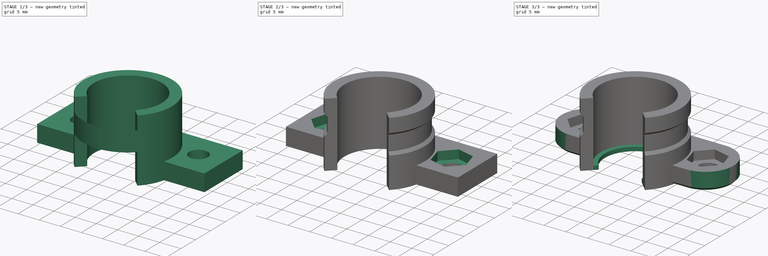
[diagram: build sequence overview — one tinted view per stage of 3, left to right]
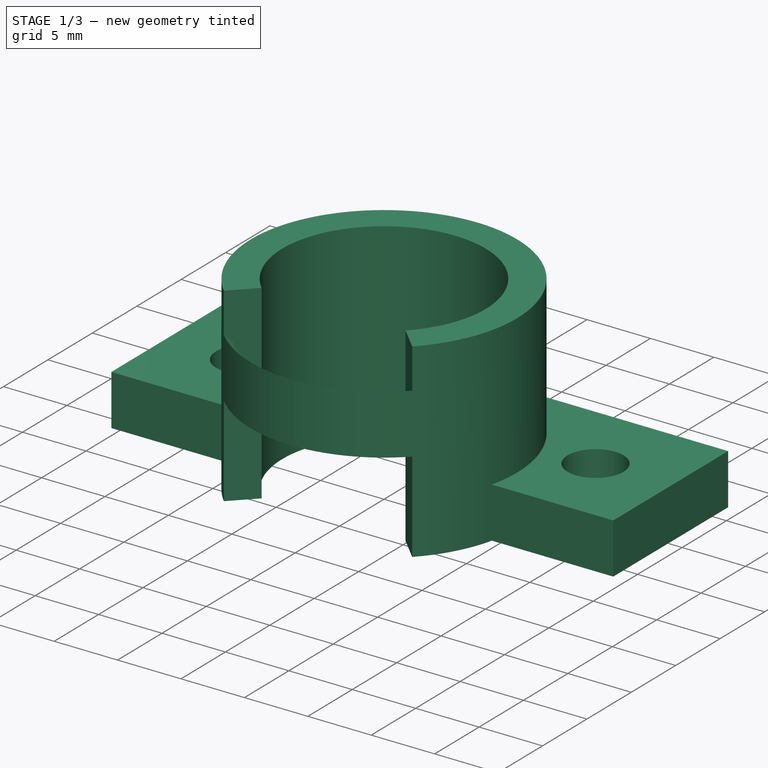
[diagram: stage 1 of 3 — iso view after this stage's code; geometry added in this stage tinted green]
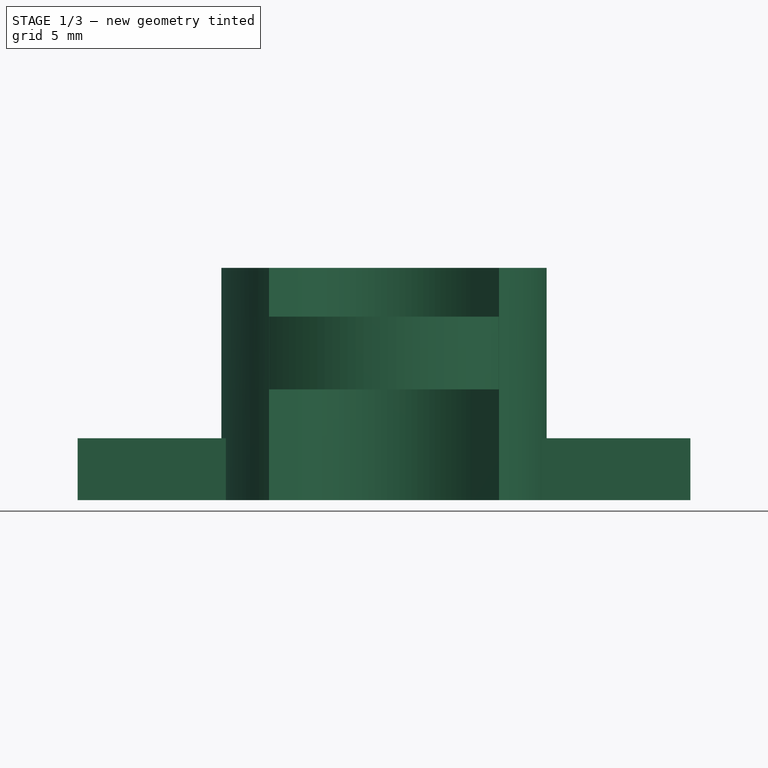
[diagram: stage 1 of 3 — front view after this stage's code; geometry added in this stage tinted green]
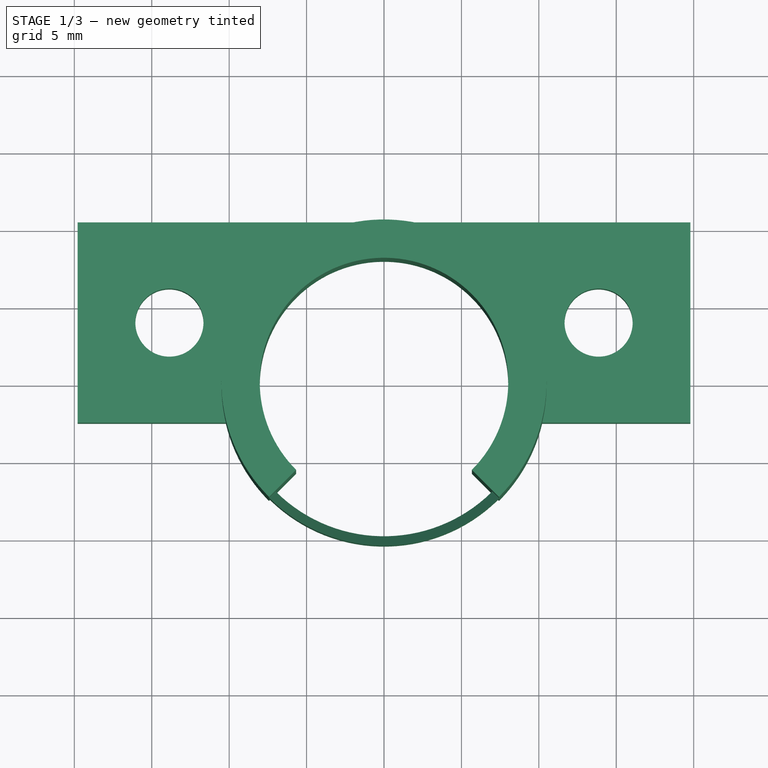
[diagram: stage 1 of 3 — top view after this stage's code; geometry added in this stage tinted green]
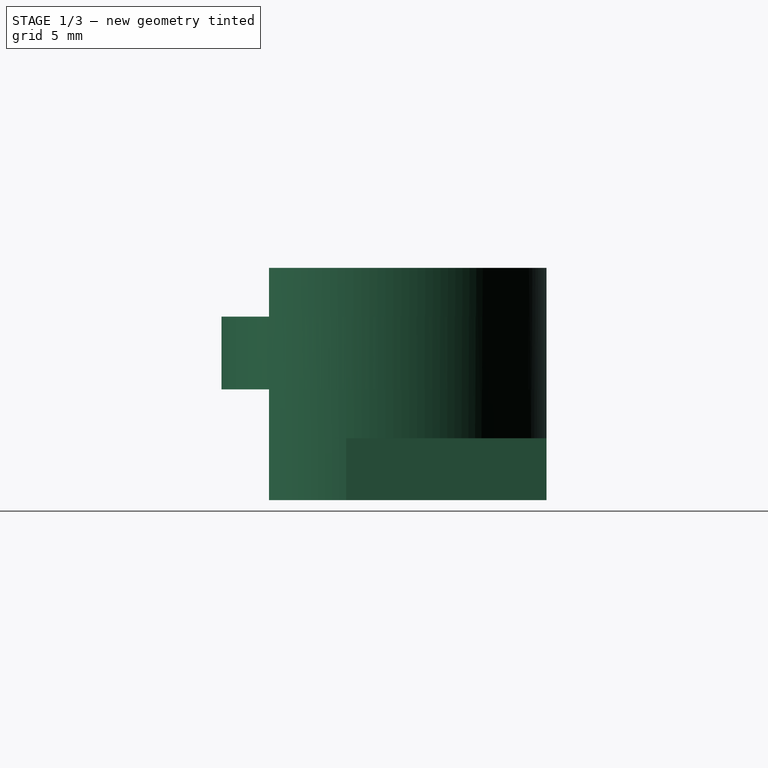
[diagram: stage 1 of 3 — right view after this stage's code; geometry added in this stage tinted green]
FCSTD DOCUMENT  (FreeCAD 0.15R4671 (Git))
Label: Halter Gleitlager X  v2
License: All rights reserved
LicenseURL: http://de.wikipedia.org/wiki/Alle_Rechte_vorbehalten
objects: Sketcher::SketchObject×5, PartDesign::Pad×3, PartDesign::Revolution×1, Part::Cut×1, PartDesign::Pocket×1, PartDesign::Fillet×1, PartDesign::Chamfer×1
note: 18 computed .brp shape members not serialized (recipe doc carries the construction recipe); baked Part::Feature solids carry a one-line shape summary decoded from their .brp

FEATURE [Sketcher::SketchObject] Sketch
  sketch-geometry (22):
    g0: Circle [constr] CenterX=0 CenterY=0 CenterZ=0 NormalX=0 NormalY=0 NormalZ=1 Radius=8.025
    g1: LineSegment StartX=-10.2124 StartY=-2.44064 StartZ=0 EndX=-19.7843 EndY=-2.44064 EndZ=0
    g2: LineSegment StartX=-19.7843 StartY=-2.44064 StartZ=0 EndX=-19.7843 EndY=10.5 EndZ=0
    g3: LineSegment StartX=19.7843 StartY=10.5 StartZ=0 EndX=-19.7843 EndY=10.5 EndZ=0
    g4: LineSegment StartX=10.2124 StartY=-2.44064 StartZ=0 EndX=19.7843 EndY=-2.44064 EndZ=0
    g5: LineSegment StartX=19.7843 StartY=-2.44064 StartZ=0 EndX=19.7843 EndY=10.5 EndZ=0
    g6: LineSegment [constr] StartX=17.3843 StartY=6.06484 StartZ=0 EndX=13.8593 EndY=8.1 EndZ=0
    g7: LineSegment [constr] StartX=13.8593 StartY=8.1 StartZ=0 EndX=10.3343 EndY=6.06484 EndZ=0
    g8: LineSegment [constr] StartX=10.3343 StartY=6.06484 StartZ=0 EndX=10.3343 EndY=1.99452 EndZ=0
    g9: LineSegment [constr] StartX=10.3343 StartY=1.99452 StartZ=0 EndX=13.8593 EndY=-0.0406388 EndZ=0
    g10: LineSegment [constr] StartX=13.8593 StartY=-0.0406388 StartZ=0 EndX=17.3843 EndY=1.99452 EndZ=0
    g11: LineSegment [constr] StartX=17.3843 StartY=1.99452 StartZ=0 EndX=17.3843 EndY=6.06484 EndZ=0
    g12: Circle [constr] CenterX=13.8593 CenterY=4.02968 CenterZ=0 NormalX=0 NormalY=0 NormalZ=1 Radius=4.07032
    g13: Circle CenterX=13.8593 CenterY=4.02968 CenterZ=0 NormalX=0 NormalY=0 NormalZ=1 Radius=2.2
    g14: Circle CenterX=-13.8593 CenterY=4.02968 CenterZ=0 NormalX=0 NormalY=0 NormalZ=1 Radius=2.2
    g15: LineSegment [constr] StartX=0 StartY=8.025 StartZ=0 EndX=0 EndY=10.5 EndZ=0
    g16: ArcOfCircle CenterX=0 CenterY=0 CenterZ=0 NormalX=0 NormalY=0 NormalZ=1 Radius=8.025 StartAngle=5.49779 EndAngle=10.2102
    g17: ArcOfCircle CenterX=0 CenterY=0 CenterZ=0 NormalX=0 NormalY=0 NormalZ=1 Radius=10.5 StartAngle=3.37618 EndAngle=3.92699
    g18: ArcOfCircle CenterX=0 CenterY=0 CenterZ=0 NormalX=0 NormalY=0 NormalZ=1 Radius=10.5 StartAngle=5.49779 EndAngle=6.0486
    g19: LineSegment StartX=-5.67453 StartY=-5.67453 StartZ=0 EndX=-7.42462 EndY=-7.42462 EndZ=0
    g20: LineSegment StartX=5.67453 StartY=-5.67453 StartZ=0 EndX=7.42462 EndY=-7.42462 EndZ=0
    g21: LineSegment [constr] StartX=10.3343 StartY=1.99452 StartZ=0 EndX=7.87959 EndY=1.52076 EndZ=0
  constraints (60):
    c: Coincident(g0,g-1)
    c: Radius(g0) = 8.025
    c: Coincident(g1,g2)
    c: Horizontal(g1)
    c: Vertical(g2)
    c: Coincident(g4,g5)
    c: Coincident(g5,g3)
    c: Horizontal(g3)
    c: Horizontal(g4)
    c: Vertical(g5)
    c: Equal(g2,g5)
    c: Coincident(g6,g7)
    c: Coincident(g7,g8)
    c: Coincident(g8,g9)
    c: Coincident(g9,g10)
    c: Coincident(g10,g11)
    c: Coincident(g11,g6)
    c: Equal(g6, g7-g11) x5
    c: PointOnObject(g6,g12)
    c: PointOnObject(g7,g12)
    c: PointOnObject(g8,g12)
    c: PointOnObject(g9,g12)
    c: PointOnObject(g10,g12)
    c: PointOnObject(g11,g12)
    c: Distance(g10,g6) = 7.05
    c: DistanceX(g6,g3) = 2.4
    c: DistanceY(g3,g6) = -2.4
    c: Coincident(g13,g12)
    c: Equal(g14,g13)
    c: Radius(g14) = 2.2
    c: Vertical(g11)
    c: DistanceY(g9,g4) = -2.4
    c: Coincident(g2,g3)
    c: Symmetric(g12,g14,g-2)
    c: Symmetric(g2,g3,g-2)
    c: PointOnObject(g15,g0)
    c: PointOnObject(g15,g3)
    c: Vertical(g15)
    c: DistanceY(g15) = 2.475
    c: PointOnObject(g15,g-2)
    c: Coincident(g16,g-1)
    c: PointOnObject(g16,g0)
    c: Coincident(g17,g-1)
    c: Coincident(g17,g1)
    c: Coincident(g18,g4)
    c: Coincident(g19,g16)
    c: Coincident(g19,g17)
    c: Coincident(g20,g16)
    c: Coincident(g20,g18)
    c: Perpendicular(g0,g20)
    c: Perpendicular(g0,g19)
    c: Equal(g17,g18)
    c: Radius(g18) = 10.5
    c: Coincident(g18,g-1)
    c: Coincident(g21,g8)
    c: PointOnObject(g21,g0)
    c: Perpendicular(g0,g21)
    c: Distance(g21) = 2.5
    c: Angle(g20,g-2) = 2.35619
    c: Angle(g-2,g19) = 2.35619
FEATURE [PartDesign::Pad] Pad
  Length = 4
  Length2 = 100
  Sketch = -> Sketch
  Type = 0
FEATURE [Sketcher::SketchObject] Sketch001
  ExternalGeometry = -> [Pad]
  Placement = pos=(0,0,4) rot=(0,0,1;0rad)
  Support = -> Pad [Face14]
  sketch-geometry (4):
    g0: ArcOfCircle CenterX=0 CenterY=0 CenterZ=0 NormalX=0 NormalY=0 NormalZ=1 Radius=8.025 StartAngle=5.49779 EndAngle=10.2102
    g1: ArcOfCircle CenterX=0 CenterY=0 CenterZ=0 NormalX=0 NormalY=0 NormalZ=1 Radius=10.5 StartAngle=5.49779 EndAngle=10.2102
    g2: LineSegment StartX=-5.67453 StartY=-5.67453 StartZ=0 EndX=-7.42462 EndY=-7.42462 EndZ=0
    g3: LineSegment StartX=5.67453 StartY=-5.67453 StartZ=0 EndX=7.42462 EndY=-7.42462 EndZ=0
  constraints (10):
    c: Coincident(g0,g-1)
    c: Coincident(g1,g-1)
    c: Coincident(g0,g3)
    c: Coincident(g0,g2)
    c: Coincident(g1,g2)
    c: Coincident(g1,g3)
    c: Coincident(g-4,g1)
    c: Coincident(g0,g-3)
    c: Perpendicular(g1,g2)
    c: Angle(g-2,g2) = 2.35619
FEATURE [PartDesign::Pad] Pad001
  Length = 11
  Length2 = 100
  Sketch = -> Sketch001
  Type = 0
FEATURE [Sketcher::SketchObject] Sketch002
  Placement = pos=(0,0,0) rot=(1,0,0;1.5708rad)
  sketch-geometry (5):
    g0: LineSegment [constr] StartX=-20 StartY=9.5 StartZ=0 EndX=20 EndY=9.5 EndZ=0
    g1: LineSegment StartX=9.9 StartY=11.25 StartZ=0 EndX=10.5 EndY=11.85 EndZ=0
    g2: LineSegment StartX=10.5 StartY=11.85 StartZ=0 EndX=10.5 EndY=7.15 EndZ=0
    g3: LineSegment StartX=10.5 StartY=7.15 StartZ=0 EndX=9.9 EndY=7.75 EndZ=0
    g4: LineSegment StartX=9.9 StartY=7.75 StartZ=0 EndX=9.9 EndY=11.25 EndZ=0
  constraints (15):
    c: Symmetric(g0,g0,g-2)
    c: DistanceY(g-1,g0) = 9.5
    c: DistanceX(g0) = 40
    c: Coincident(g1,g2)
    c: Coincident(g2,g3)
    c: Coincident(g3,g4)
    c: Coincident(g4,g1)
    c: Vertical(g2)
    c: Vertical(g4)
    c: Symmetric(g2,g1,g0)
    c: DistanceX(g3) = -0.6
    c: DistanceX(g-1,g2) = 10.5
    c: DistanceY(g4) = 3.5
    c: Angle(g2,g3) = 0.785398
    c: Equal(g1,g3)
FEATURE [PartDesign::Revolution] Revolution
  Angle = 360
  Axis = (0,0,1)
  Base = (0,0,0)
  Placement = pos=(0,0,0) rot=(1,0,0;1.5708rad)
  ReferenceAxis = -> Sketch002 [V_Axis]
  Reversed = true
  Sketch = -> Sketch002
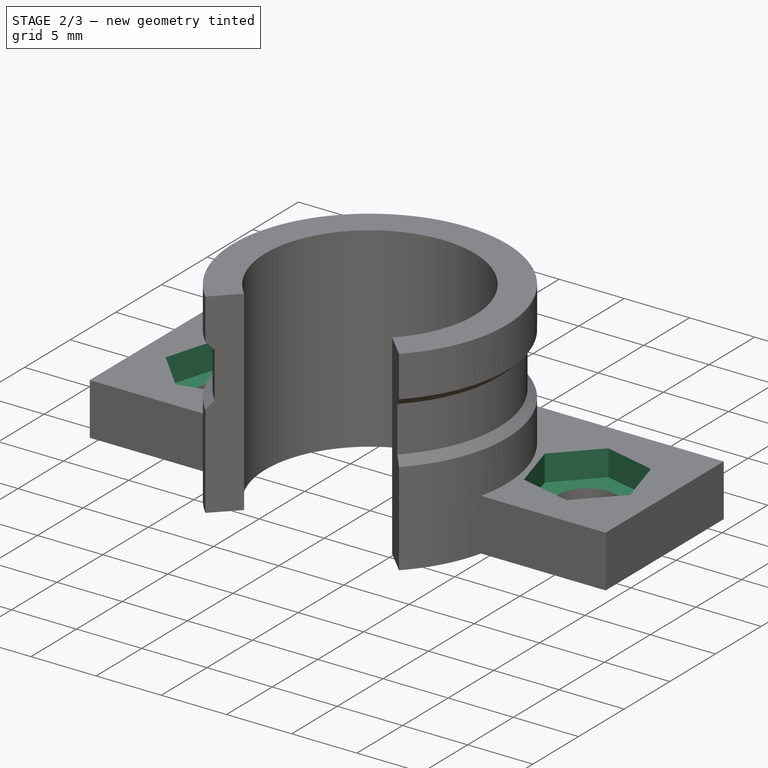
[diagram: stage 2 of 3 — iso view after this stage's code; geometry added in this stage tinted green]
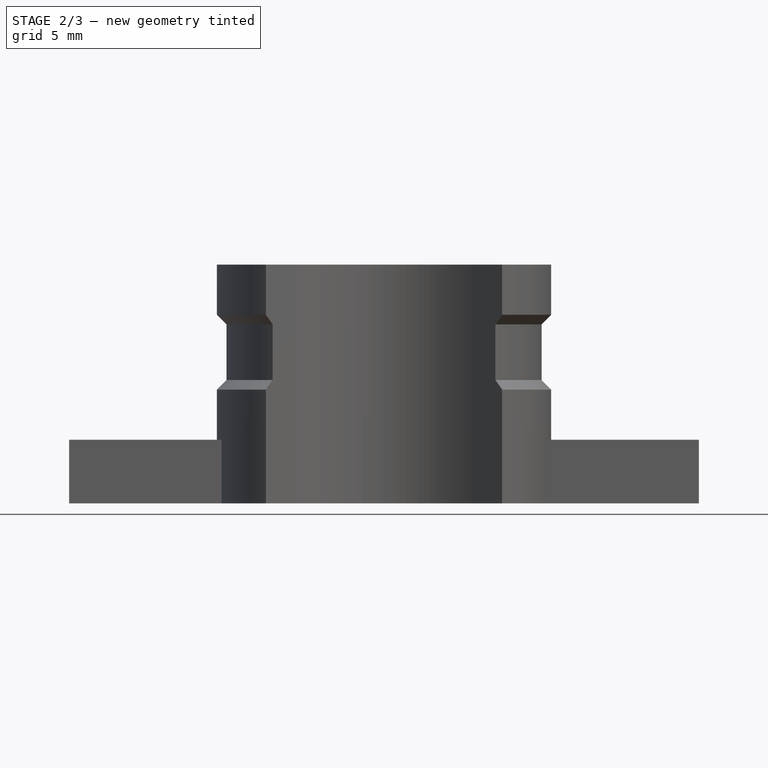
[diagram: stage 2 of 3 — front view after this stage's code; geometry added in this stage tinted green]
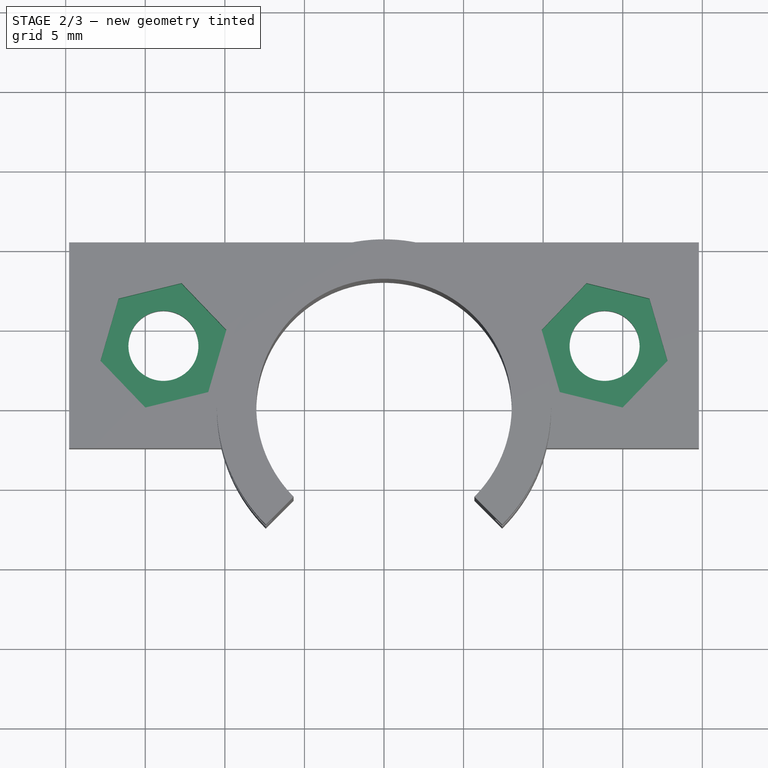
[diagram: stage 2 of 3 — top view after this stage's code; geometry added in this stage tinted green]
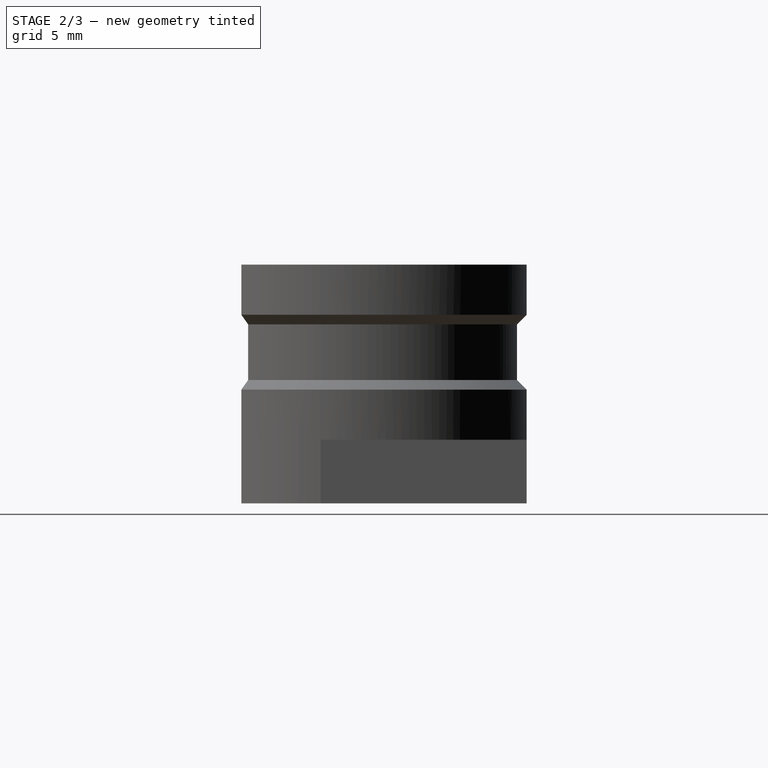
[diagram: stage 2 of 3 — right view after this stage's code; geometry added in this stage tinted green]
FEATURE [Part::Cut] Cut
  Base = -> Pad001
  Tool = -> Revolution
FEATURE [Sketcher::SketchObject] Sketch003
  ExternalGeometry = -> [Cut]
  Placement = pos=(0,0,4) rot=(0,0,1;0rad)
  Support = -> Cut [Face5]
  sketch-geometry (16):
    g0: LineSegment StartX=17.8123 StartY=3.05961 StartZ=0 EndX=16.6759 EndY=6.96807 EndZ=0
    g1: LineSegment StartX=16.6759 StartY=6.96807 StartZ=0 EndX=12.7229 EndY=7.93814 EndZ=0
    g2: LineSegment StartX=12.7229 StartY=7.93814 StartZ=0 EndX=9.90626 EndY=4.99975 EndZ=0
    g3: LineSegment StartX=9.90626 StartY=4.99975 StartZ=0 EndX=11.0427 EndY=1.09129 EndZ=0
    g4: LineSegment StartX=11.0427 StartY=1.09129 StartZ=0 EndX=14.9957 EndY=0.121219 EndZ=0
    g5: LineSegment StartX=14.9957 StartY=0.121219 StartZ=0 EndX=17.8123 EndY=3.05961 EndZ=0
    g6: Circle [constr] CenterX=13.8593 CenterY=4.02968 CenterZ=0 NormalX=0 NormalY=0 NormalZ=1 Radius=4.07032
    g7: LineSegment StartX=-17.8123 StartY=3.05961 StartZ=0 EndX=-14.9957 EndY=0.121219 EndZ=0
    g8: LineSegment StartX=-14.9957 StartY=0.121219 StartZ=0 EndX=-11.0427 EndY=1.09129 EndZ=0
    g9: LineSegment StartX=-11.0427 StartY=1.09129 StartZ=0 EndX=-9.90626 EndY=4.99975 EndZ=0
    g10: LineSegment StartX=-9.90626 StartY=4.99975 StartZ=0 EndX=-12.7229 EndY=7.93814 EndZ=0
    g11: LineSegment StartX=-12.7229 StartY=7.93814 StartZ=0 EndX=-16.6759 EndY=6.96807 EndZ=0
    g12: LineSegment StartX=-16.6759 StartY=6.96807 StartZ=0 EndX=-17.8123 EndY=3.05961 EndZ=0
    g13: Circle [constr] CenterX=-13.8593 CenterY=4.02968 CenterZ=0 NormalX=0 NormalY=0 NormalZ=1 Radius=4.07032
    g14: LineSegment [constr] StartX=10.4745 StartY=3.04552 StartZ=0 EndX=10.0825 EndY=2.93154 EndZ=0
    g15: LineSegment [constr] StartX=-10.4745 StartY=3.04552 StartZ=0 EndX=-10.0825 EndY=2.93154 EndZ=0
  constraints (38):
    c: Coincident(g0,g1)
    c: Coincident(g1,g2)
    c: Coincident(g2,g3)
    c: Coincident(g3,g4)
    c: Coincident(g4,g5)
    c: Coincident(g5,g0)
    c: Equal(g0, g1-g5) x5
    c: PointOnObject(g0,g6)
    c: PointOnObject(g1,g6)
    c: PointOnObject(g2,g6)
    c: PointOnObject(g3,g6)
    c: PointOnObject(g4,g6)
    c: PointOnObject(g5,g6)
    c: Coincident(g7,g8)
    c: Coincident(g8,g9)
    c: Coincident(g9,g10)
    c: Coincident(g10,g11)
    c: Coincident(g11,g12)
    c: Coincident(g12,g7)
    c: Equal(g7, g8-g12) x5
    c: PointOnObject(g7,g13)
    c: PointOnObject(g8,g13)
    c: PointOnObject(g9,g13)
    c: PointOnObject(g10,g13)
    c: PointOnObject(g11,g13)
    c: PointOnObject(g12,g13)
    c: Coincident(g13,g-6)
    c: Coincident(g6,g-5)
    c: Equal(g13,g6)
    c: Distance(g0,g3) = 7.05
    c: PointOnObject(g14,g3)
    c: PointOnObject(g14,g-4)
    c: Symmetric(g2,g3,g14)
    c: Perpendicular(g-4,g14)
    c: PointOnObject(g15,g9)
    c: PointOnObject(g15,g-3)
    c: Symmetric(g9,g8,g15)
    c: Perpendicular(g-3,g15)
FEATURE [PartDesign::Pocket] Pocket
  Length = 2
  Sketch = -> Sketch003
  Type = 0
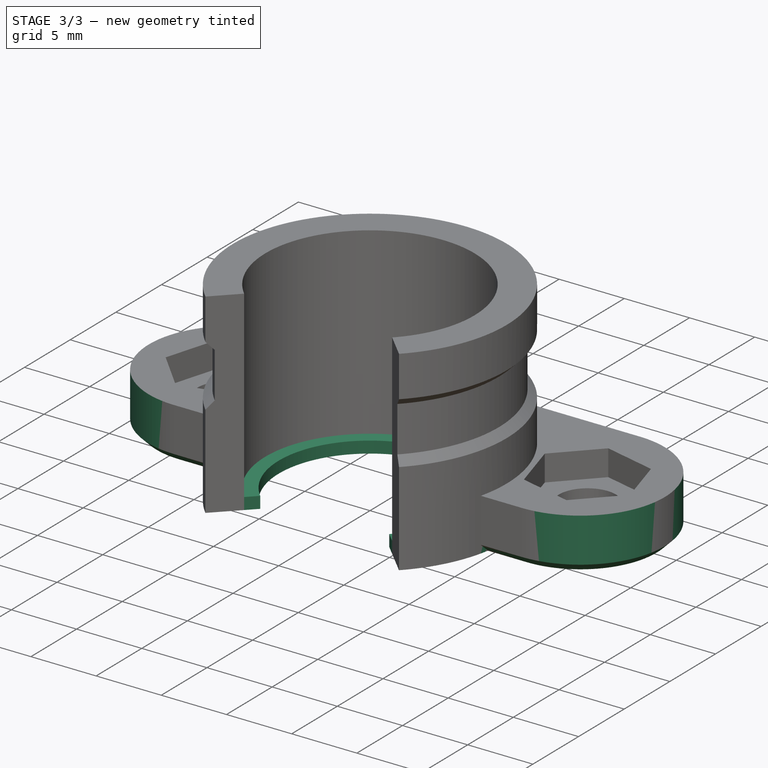
[diagram: stage 3 of 3 — iso view after this stage's code; geometry added in this stage tinted green]
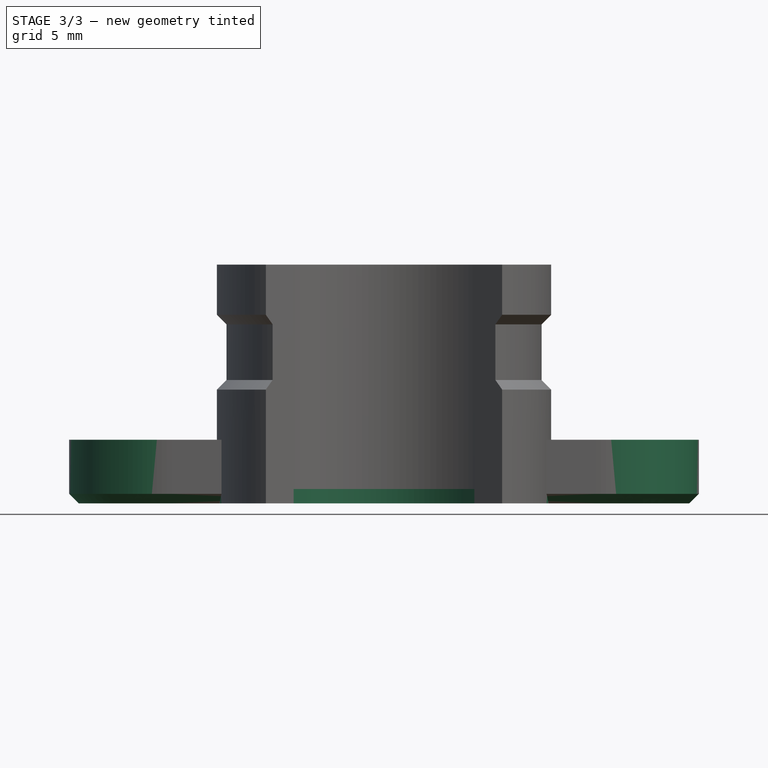
[diagram: stage 3 of 3 — front view after this stage's code; geometry added in this stage tinted green]
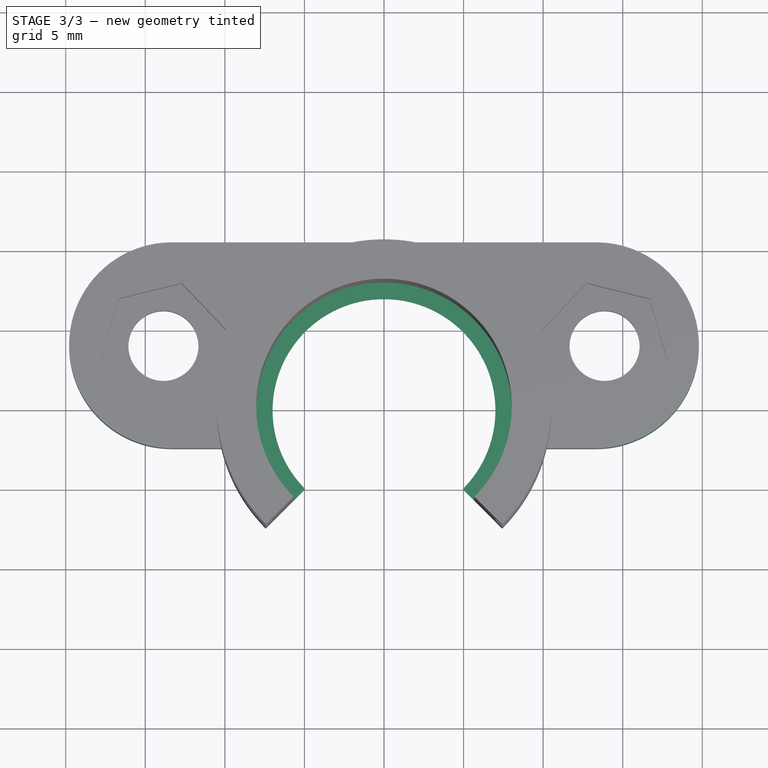
[diagram: stage 3 of 3 — top view after this stage's code; geometry added in this stage tinted green]
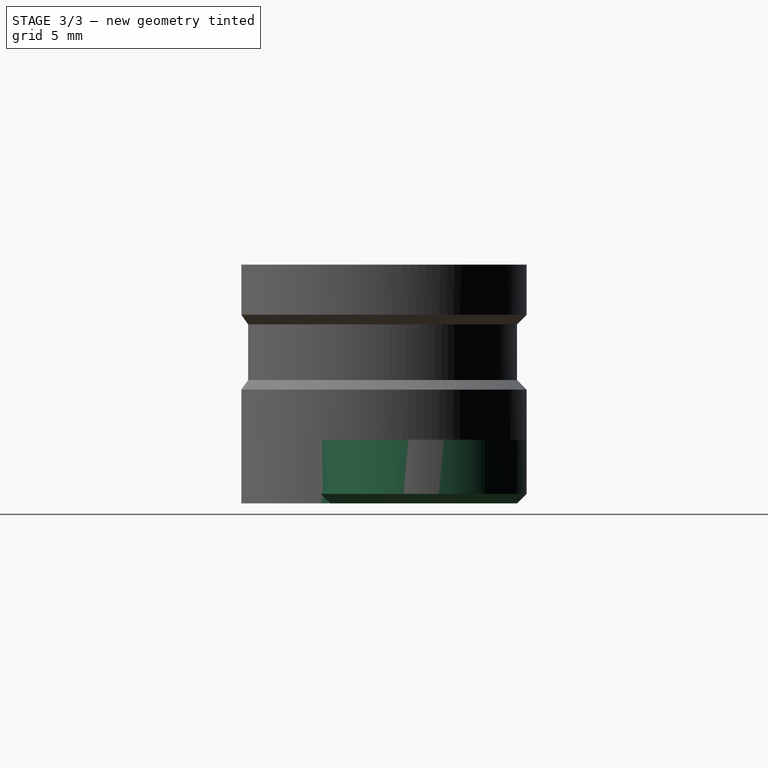
[diagram: stage 3 of 3 — right view after this stage's code; geometry added in this stage tinted green]
FEATURE [PartDesign::Fillet] Fillet
  Base = -> Pocket [Edge38,Edge36,Edge8,Edge2]
  Radius = 6.46
FEATURE [PartDesign::Chamfer] Chamfer
  Base = -> Fillet [Edge11,Edge13,Edge9]
  Size = 0.6
FEATURE [Sketcher::SketchObject] Sketch004
  ExternalGeometry = -> [Chamfer]
  Placement = pos=(0,0,0) rot=(1,0,0;3.14159rad)
  Support = -> Chamfer [Face8]
  sketch-geometry (4):
    g0: ArcOfCircle CenterX=0 CenterY=0 CenterZ=0 NormalX=0 NormalY=0 NormalZ=1 Radius=7 StartAngle=2.35619 EndAngle=7.06858
    g1: ArcOfCircle CenterX=0 CenterY=0 CenterZ=0 NormalX=0 NormalY=0 NormalZ=1 Radius=8.025 StartAngle=2.35619 EndAngle=7.06858
    g2: LineSegment StartX=4.94975 StartY=4.94975 StartZ=0 EndX=5.67453 EndY=5.67453 EndZ=0
    g3: LineSegment StartX=-5.67453 StartY=5.67453 StartZ=0 EndX=-4.94975 EndY=4.94975 EndZ=0
  constraints (11):
    c: Coincident(g0,g-1)
    c: Coincident(g1,g-1)
    c: Coincident(g2,g0)
    c: Coincident(g1,g2)
    c: Perpendicular(g1,g2)
    c: Coincident(g1,g-3)
    c: Coincident(g3,g1)
    c: Coincident(g0,g3)
    c: Perpendicular(g0,g3)
    c: Angle(g3,g-2) = 2.35619
    c: Radius(g0) = 7
FEATURE [PartDesign::Pad] Pad002
  Length = 0.9
  Length2 = 100
  Reversed = true
  Sketch = -> Sketch004
  Type = 0
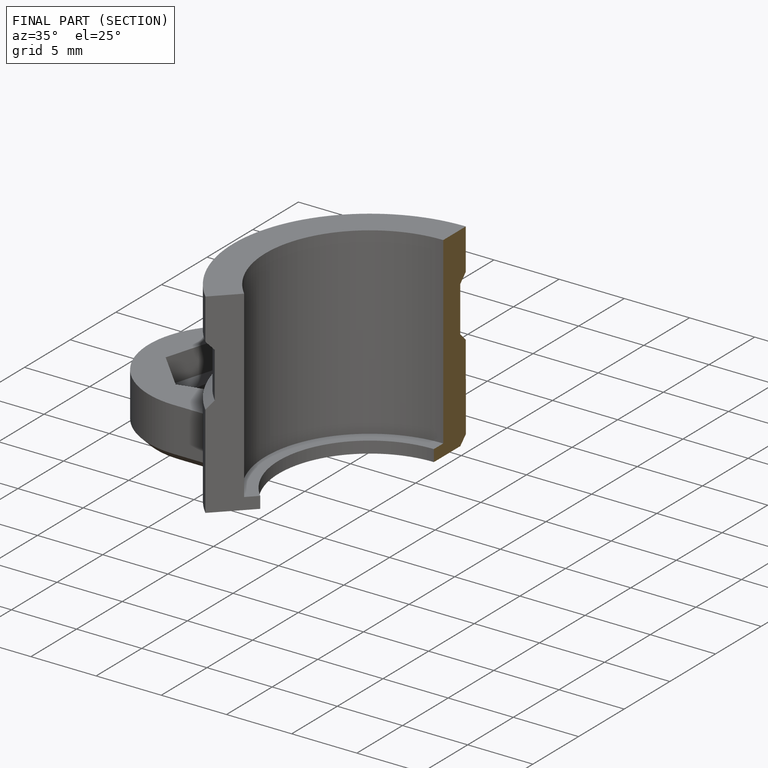
[diagram: finished part — half-section view (interior)]
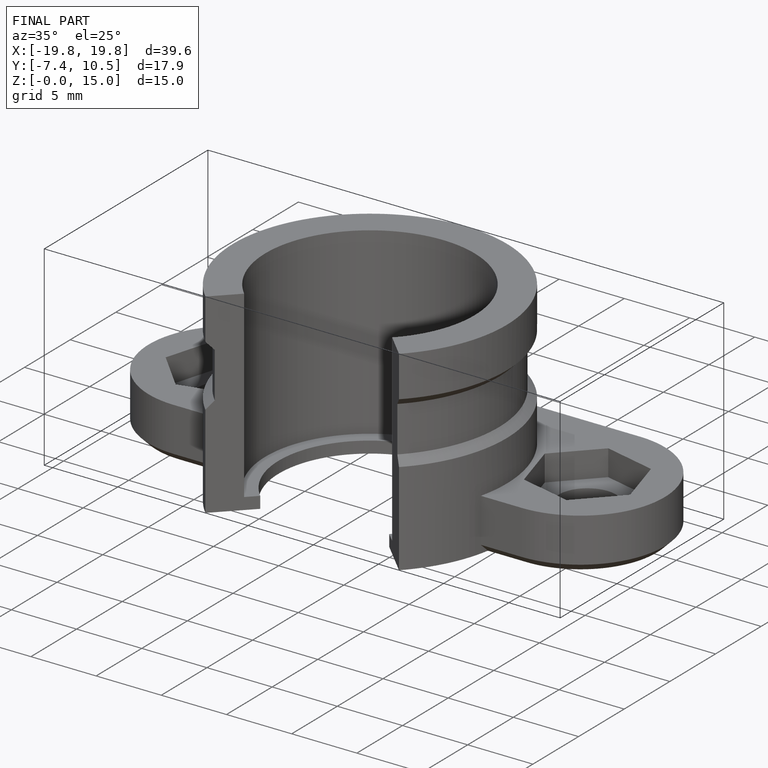
[diagram: finished part — iso view with bounding-box wireframe]
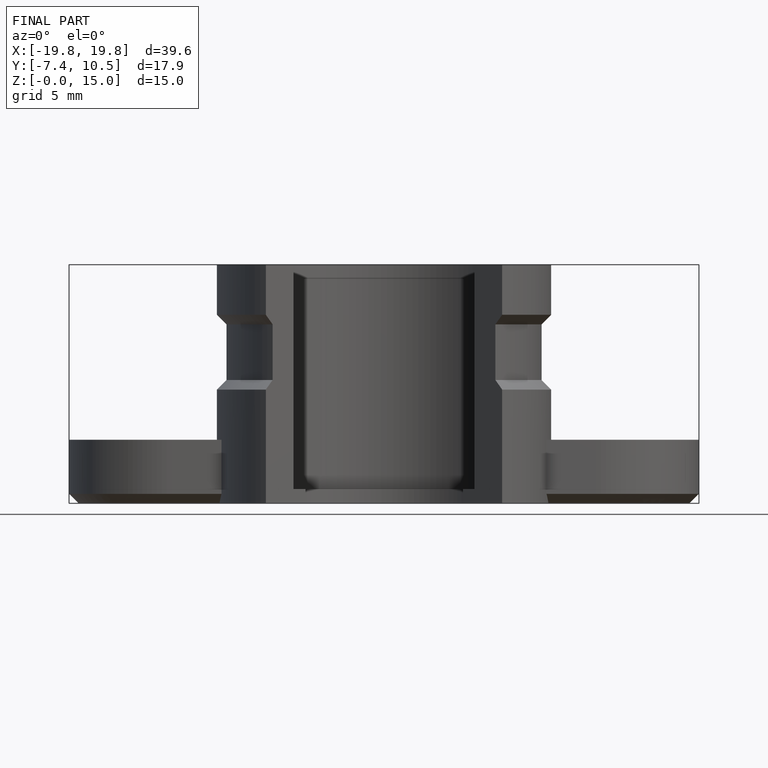
[diagram: finished part — front view with bounding-box wireframe]
